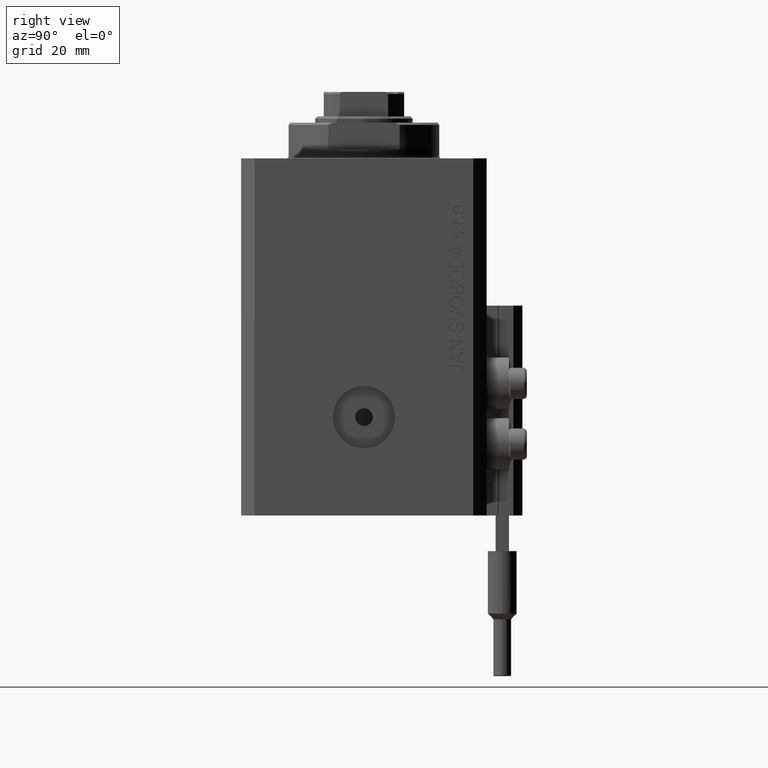
[diagram: clean part render]
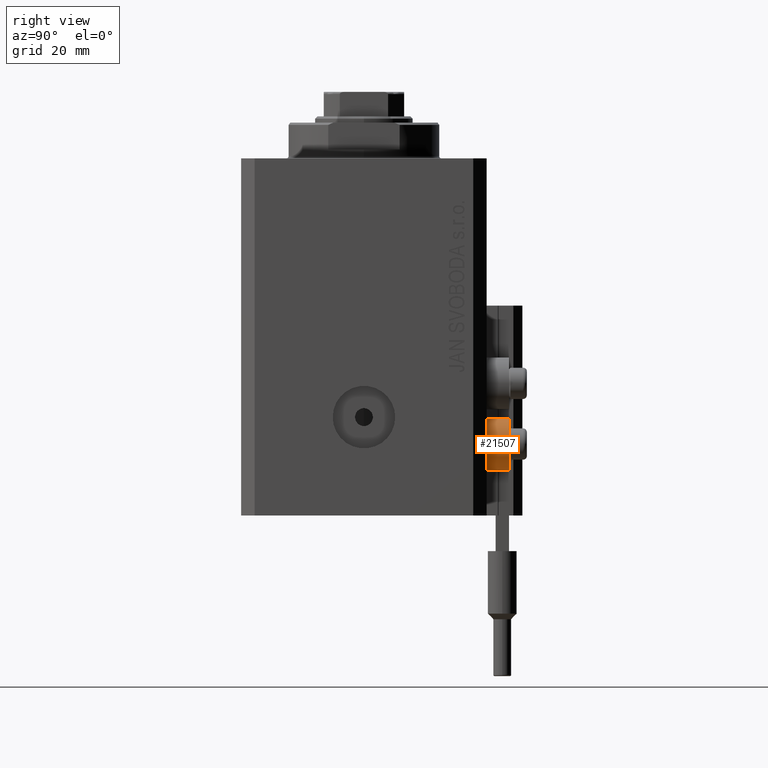
[diagram: same view with one face highlighted and labeled with its STEP entity id]
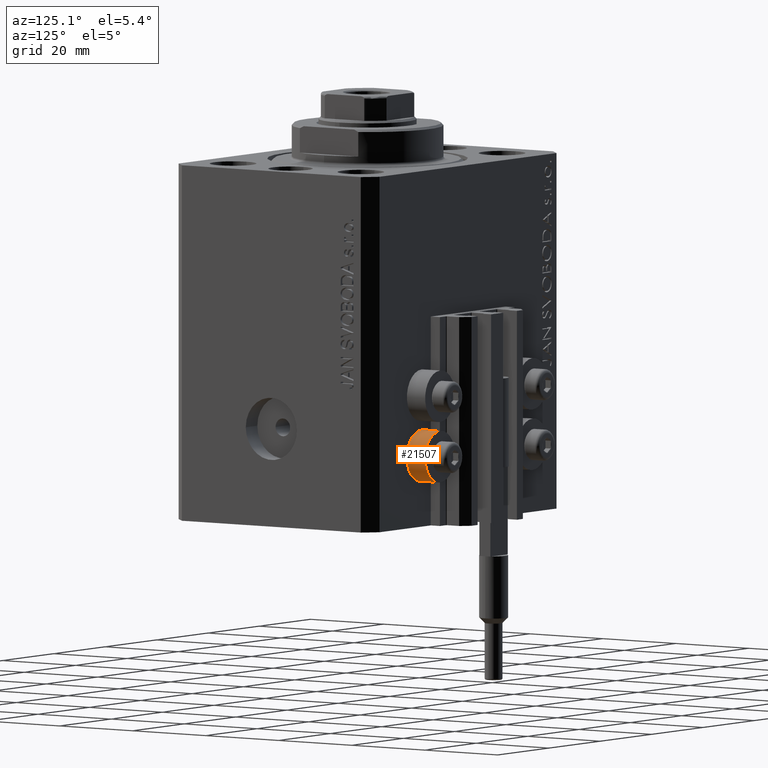
[diagram: same view with one face highlighted and labeled with its STEP entity id]
A machine part, right view. The second image highlights one B-rep face of the part: STEP entity #21507.
A second angle (auxiliary view) of the same face is appended — the face is thin or edge-on in the first view.
In plain terms, the highlighted cylindrical surface (edge-blend (fillet) strip) has radius 5.8 mm, axis along (0, 1, 0).
Its self-contained STEP definition (entity closure, byte-faithful):
#1301 = LINE ( 'NONE', #8576, #21385 ) ;
#2065 = ORIENTED_EDGE ( 'NONE', *, *, #23714, .F. ) ;
#2432 = CARTESIAN_POINT ( 'NONE',  ( 18.00000000000000355, 32.49999999996100541, -58.20000000000000284 ) ) ;
#4527 = CARTESIAN_POINT ( 'NONE',  ( 18.00000000000000355, 27.50000000000000000, -58.20000000000000284 ) ) ;
#4907 = AXIS2_PLACEMENT_3D ( 'NONE', #15619, #22419, #15859 ) ;
#5914 = EDGE_CURVE ( 'NONE', #26868, #43149, #44139, .T. ) ;
#5941 = AXIS2_PLACEMENT_3D ( 'NONE', #44715, #26278, #34282 ) ;
#8576 = CARTESIAN_POINT ( 'NONE',  ( 18.00000000000000355, 32.49999999996100541, -69.79999999999999716 ) ) ;
#15619 = CARTESIAN_POINT ( 'NONE',  ( 18.00000000000000355, 32.49999999996100541, -64.00000000000000000 ) ) ;
#15859 = DIRECTION ( 'NONE',  ( 0.000000000000000000, 0.000000000000000000, -1.000000000000000000 ) ) ;
#15944 = AXIS2_PLACEMENT_3D ( 'NONE', #36217, #17751, #36468 ) ;
#17751 = DIRECTION ( 'NONE',  ( 0.000000000000000000, 1.000000000000000000, 0.000000000000000000 ) ) ;
#21385 = VECTOR ( 'NONE', #34799, 1000.000000000000000 ) ;
#21459 = CIRCLE ( 'NONE', #5941, 5.799999999999999822 ) ;
#21507 = ADVANCED_FACE ( 'NONE', ( #40892 ), #26320, .T. ) ;
#22419 = DIRECTION ( 'NONE',  ( 0.000000000000000000, 1.000000000000000000, 0.000000000000000000 ) ) ;
#23421 = VERTEX_POINT ( 'NONE', #43090 ) ;
#23714 = EDGE_CURVE ( 'NONE', #43149, #30177, #30679, .T. ) ;
#26278 = DIRECTION ( 'NONE',  ( 0.000000000000000000, 1.000000000000000000, 0.000000000000000000 ) ) ;
#26320 = CYLINDRICAL_SURFACE ( 'NONE', #4907, 5.799999999999999822 ) ;
#26868 = VERTEX_POINT ( 'NONE', #4527 ) ;
#30177 = VERTEX_POINT ( 'NONE', #34699 ) ;
#30679 = CIRCLE ( 'NONE', #15944, 5.799999999999999822 ) ;
#30860 = ORIENTED_EDGE ( 'NONE', *, *, #39283, .T. ) ;
#34282 = DIRECTION ( 'NONE',  ( 0.000000000000000000, 0.000000000000000000, -1.000000000000000000 ) ) ;
#34699 = CARTESIAN_POINT ( 'NONE',  ( 18.00000000000000355, 32.49999999996100541, -69.79999999999999716 ) ) ;
#34799 = DIRECTION ( 'NONE',  ( 0.000000000000000000, 1.000000000000000000, 0.000000000000000000 ) ) ;
#36217 = CARTESIAN_POINT ( 'NONE',  ( 18.00000000000000355, 32.49999999996100541, -64.00000000000000000 ) ) ;
#36468 = DIRECTION ( 'NONE',  ( 0.000000000000000000, 0.000000000000000000, -1.000000000000000000 ) ) ;
#36859 = CARTESIAN_POINT ( 'NONE',  ( 18.00000000000000355, 32.49999999996100541, -58.20000000000000284 ) ) ;
#37922 = VECTOR ( 'NONE', #40746, 1000.000000000000000 ) ;
#39283 = EDGE_CURVE ( 'NONE', #23421, #30177, #1301, .T. ) ;
#40407 = EDGE_LOOP ( 'NONE', ( #46686, #42790, #30860, #2065 ) ) ;
#40746 = DIRECTION ( 'NONE',  ( 0.000000000000000000, 1.000000000000000000, 0.000000000000000000 ) ) ;
#40892 = FACE_OUTER_BOUND ( 'NONE', #40407, .T. ) ;
#41379 = EDGE_CURVE ( 'NONE', #26868, #23421, #21459, .T. ) ;
#42790 = ORIENTED_EDGE ( 'NONE', *, *, #41379, .T. ) ;
#43090 = CARTESIAN_POINT ( 'NONE',  ( 18.00000000000000355, 27.50000000000000000, -69.79999999999999716 ) ) ;
#43149 = VERTEX_POINT ( 'NONE', #2432 ) ;
#44139 = LINE ( 'NONE', #36859, #37922 ) ;
#44715 = CARTESIAN_POINT ( 'NONE',  ( 18.00000000000000355, 27.50000000000000000, -64.00000000000000000 ) ) ;
#46686 = ORIENTED_EDGE ( 'NONE', *, *, #5914, .F. ) ;